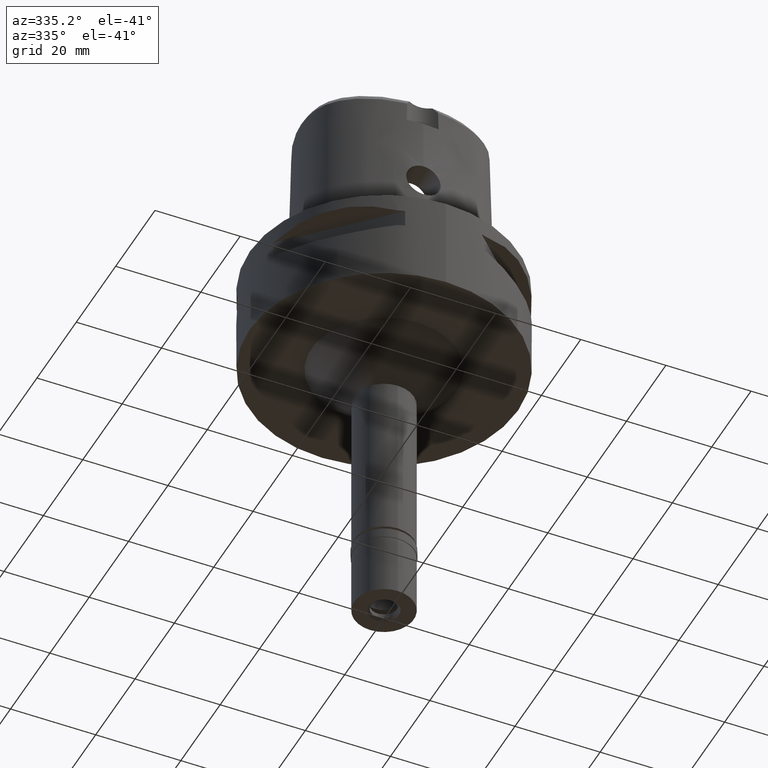
[diagram: clean part render]
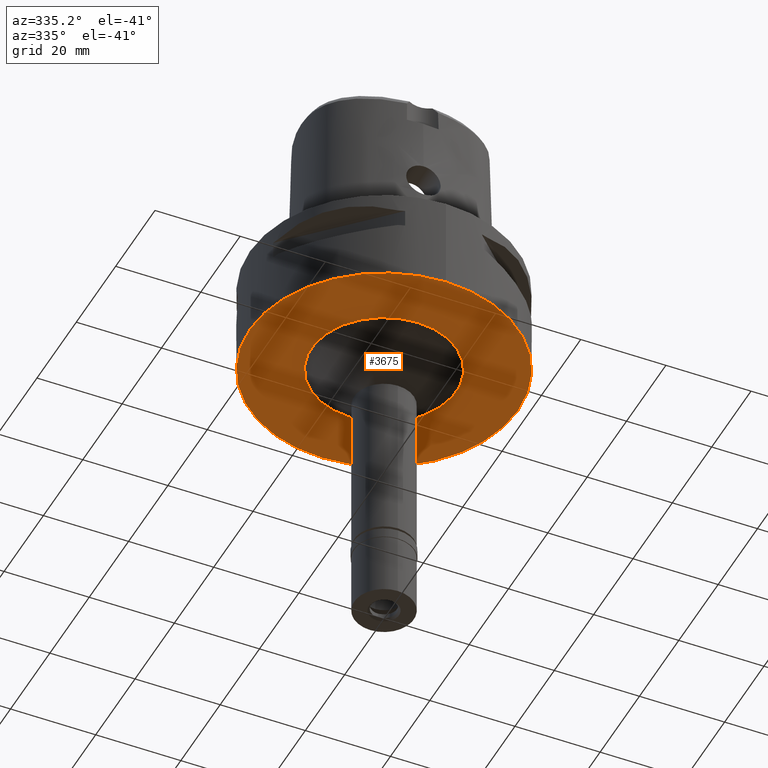
[diagram: same view with one face highlighted and labeled with its STEP entity id]
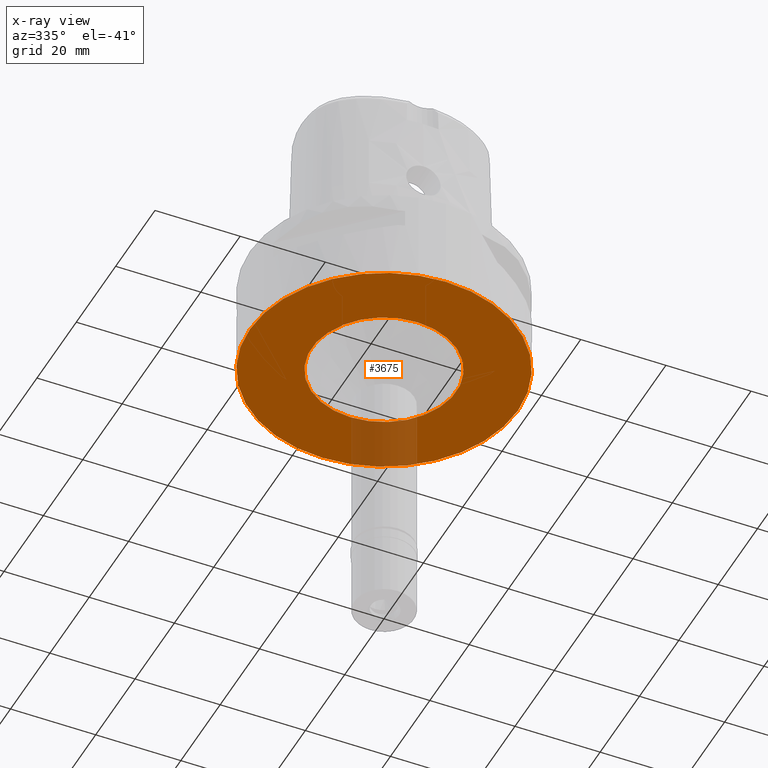
[diagram: x-ray of the same camera — body ghosted, the highlighted face saturated]
A machine part, auxiliary view. The second image highlights one B-rep face of the part: STEP entity #3675.
The next image is the same camera in x-ray: the body ghosted, the highlighted face saturated — about 9% of this face is hidden behind the body in this view.
In plain terms, the highlighted planar face has unit normal (0, 0, -1).
Its self-contained STEP definition (entity closure, byte-faithful):
#140 = CARTESIAN_POINT ( 'NONE',  ( 0.0000000000000000000, -31.50000000000000000, -22.00000000000000000 ) ) ;
#199 = FACE_BOUND ( 'NONE', #4806, .T. ) ;
#291 = ORIENTED_EDGE ( 'NONE', *, *, #4231, .F. ) ;
#681 = VERTEX_POINT ( 'NONE', #1981 ) ;
#879 = VERTEX_POINT ( 'NONE', #3444 ) ;
#1016 = DIRECTION ( 'NONE',  ( 0.0000000000000000000, 0.0000000000000000000, -1.000000000000000000 ) ) ;
#1078 = CIRCLE ( 'NONE', #1797, 17.00000000000000000 ) ;
#1237 = AXIS2_PLACEMENT_3D ( 'NONE', #1363, #1016, #3627 ) ;
#1249 = DIRECTION ( 'NONE',  ( 0.0000000000000000000, 0.0000000000000000000, 1.000000000000000000 ) ) ;
#1300 = ORIENTED_EDGE ( 'NONE', *, *, #4786, .F. ) ;
#1313 = FACE_OUTER_BOUND ( 'NONE', #1460, .T. ) ;
#1363 = CARTESIAN_POINT ( 'NONE',  ( 0.0000000000000000000, 0.0000000000000000000, -22.00000000000000000 ) ) ;
#1421 = CARTESIAN_POINT ( 'NONE',  ( 0.0000000000000000000, 0.0000000000000000000, -22.00000000000000000 ) ) ;
#1460 = EDGE_LOOP ( 'NONE', ( #3255, #1300 ) ) ;
#1467 = CIRCLE ( 'NONE', #1954, 31.50000000000000000 ) ;
#1537 = CARTESIAN_POINT ( 'NONE',  ( 0.0000000000000000000, 1.277306611510999858E-14, -22.00000000000000000 ) ) ;
#1641 = CARTESIAN_POINT ( 'NONE',  ( 0.0000000000000000000, 31.50000000000000000, -22.00000000000000000 ) ) ;
#1797 = AXIS2_PLACEMENT_3D ( 'NONE', #1421, #2171, #2856 ) ;
#1954 = AXIS2_PLACEMENT_3D ( 'NONE', #1537, #3090, #2747 ) ;
#1981 = CARTESIAN_POINT ( 'NONE',  ( 0.0000000000000000000, 17.00000000000000000, -22.00000000000000000 ) ) ;
#2018 = CARTESIAN_POINT ( 'NONE',  ( 0.0000000000000000000, 1.277306611510999858E-14, -22.00000000000000000 ) ) ;
#2114 = PLANE ( 'NONE',  #1237 ) ;
#2171 = DIRECTION ( 'NONE',  ( 0.0000000000000000000, 0.0000000000000000000, -1.000000000000000000 ) ) ;
#2188 = CIRCLE ( 'NONE', #4713, 31.50000000000000000 ) ;
#2192 = VERTEX_POINT ( 'NONE', #140 ) ;
#2747 = DIRECTION ( 'NONE',  ( 0.0000000000000000000, -1.000000000000000000, 0.0000000000000000000 ) ) ;
#2805 = DIRECTION ( 'NONE',  ( 0.0000000000000000000, 1.000000000000000000, 0.0000000000000000000 ) ) ;
#2856 = DIRECTION ( 'NONE',  ( 0.0000000000000000000, -1.000000000000000000, 0.0000000000000000000 ) ) ;
#2858 = CIRCLE ( 'NONE', #3262, 17.00000000000000000 ) ;
#3090 = DIRECTION ( 'NONE',  ( 0.0000000000000000000, 0.0000000000000000000, 1.000000000000000000 ) ) ;
#3146 = EDGE_CURVE ( 'NONE', #681, #879, #2858, .T. ) ;
#3255 = ORIENTED_EDGE ( 'NONE', *, *, #4143, .F. ) ;
#3262 = AXIS2_PLACEMENT_3D ( 'NONE', #4567, #4893, #4542 ) ;
#3444 = CARTESIAN_POINT ( 'NONE',  ( 0.0000000000000000000, -17.00000000000000000, -22.00000000000000000 ) ) ;
#3574 = VERTEX_POINT ( 'NONE', #1641 ) ;
#3627 = DIRECTION ( 'NONE',  ( 0.0000000000000000000, -1.000000000000000000, 0.0000000000000000000 ) ) ;
#3675 = ADVANCED_FACE ( 'NONE', ( #1313, #199 ), #2114, .T. ) ;
#4143 = EDGE_CURVE ( 'NONE', #3574, #2192, #2188, .T. ) ;
#4231 = EDGE_CURVE ( 'NONE', #879, #681, #1078, .T. ) ;
#4542 = DIRECTION ( 'NONE',  ( 0.0000000000000000000, 1.000000000000000000, 0.0000000000000000000 ) ) ;
#4567 = CARTESIAN_POINT ( 'NONE',  ( 0.0000000000000000000, 0.0000000000000000000, -22.00000000000000000 ) ) ;
#4648 = ORIENTED_EDGE ( 'NONE', *, *, #3146, .F. ) ;
#4713 = AXIS2_PLACEMENT_3D ( 'NONE', #2018, #1249, #2805 ) ;
#4786 = EDGE_CURVE ( 'NONE', #2192, #3574, #1467, .T. ) ;
#4806 = EDGE_LOOP ( 'NONE', ( #4648, #291 ) ) ;
#4893 = DIRECTION ( 'NONE',  ( 0.0000000000000000000, 0.0000000000000000000, -1.000000000000000000 ) ) ;